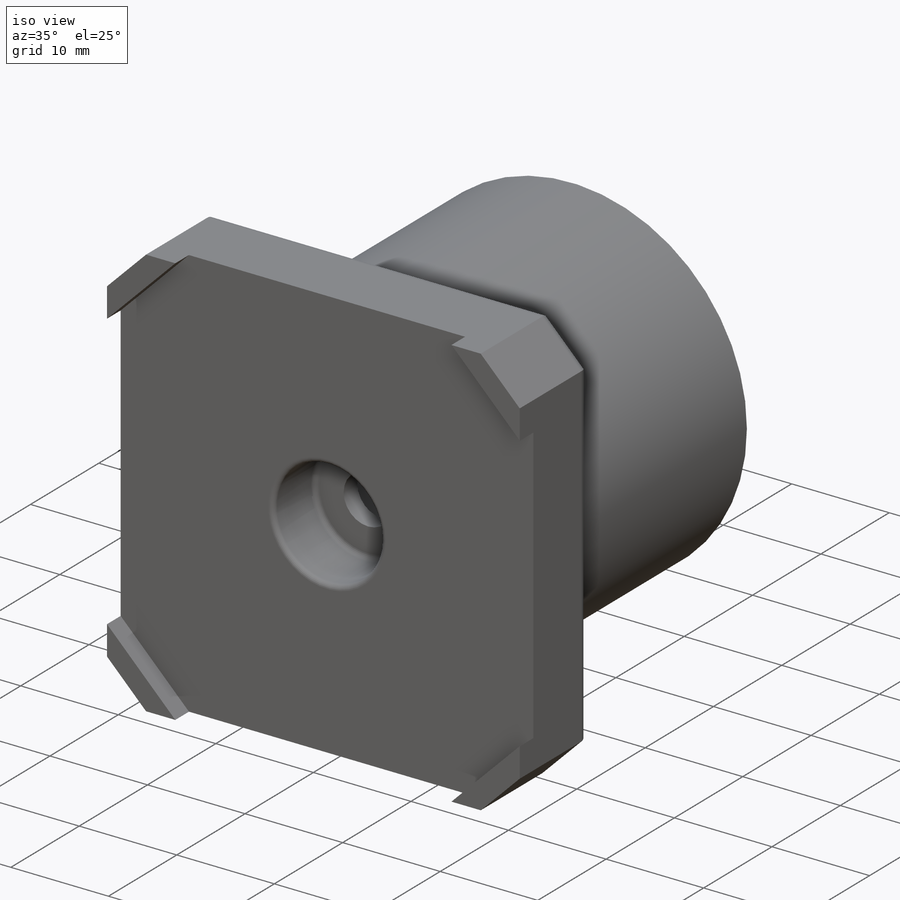
[diagram: iso view]
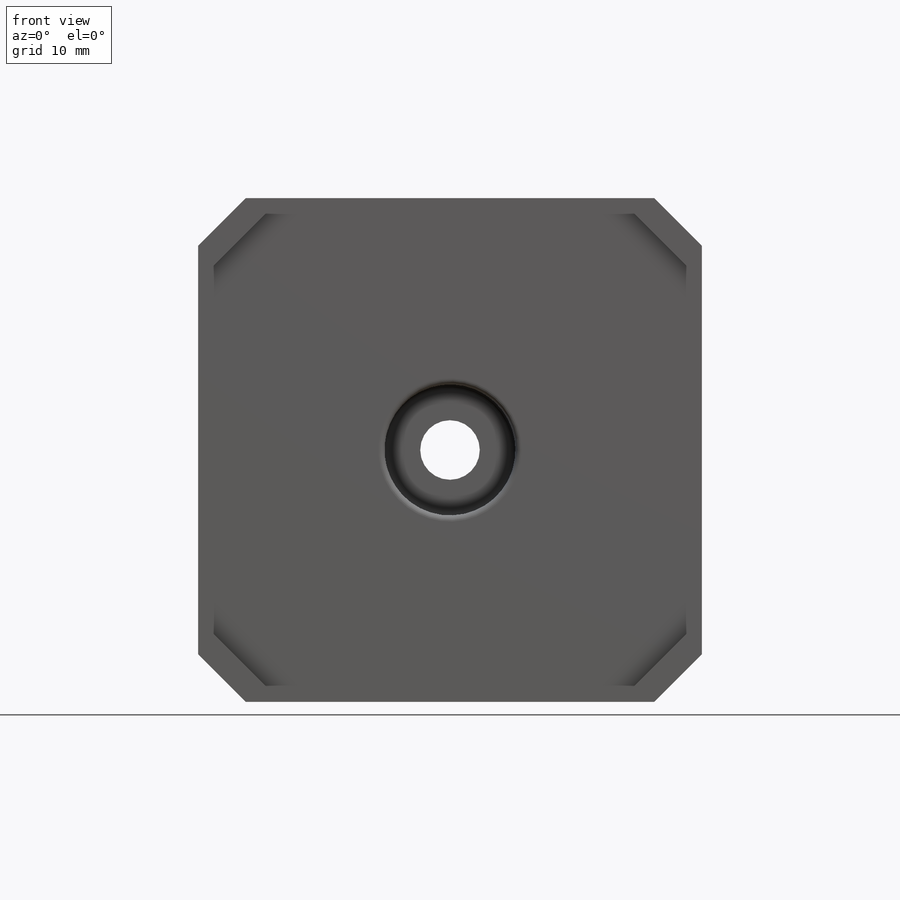
[diagram: front view]
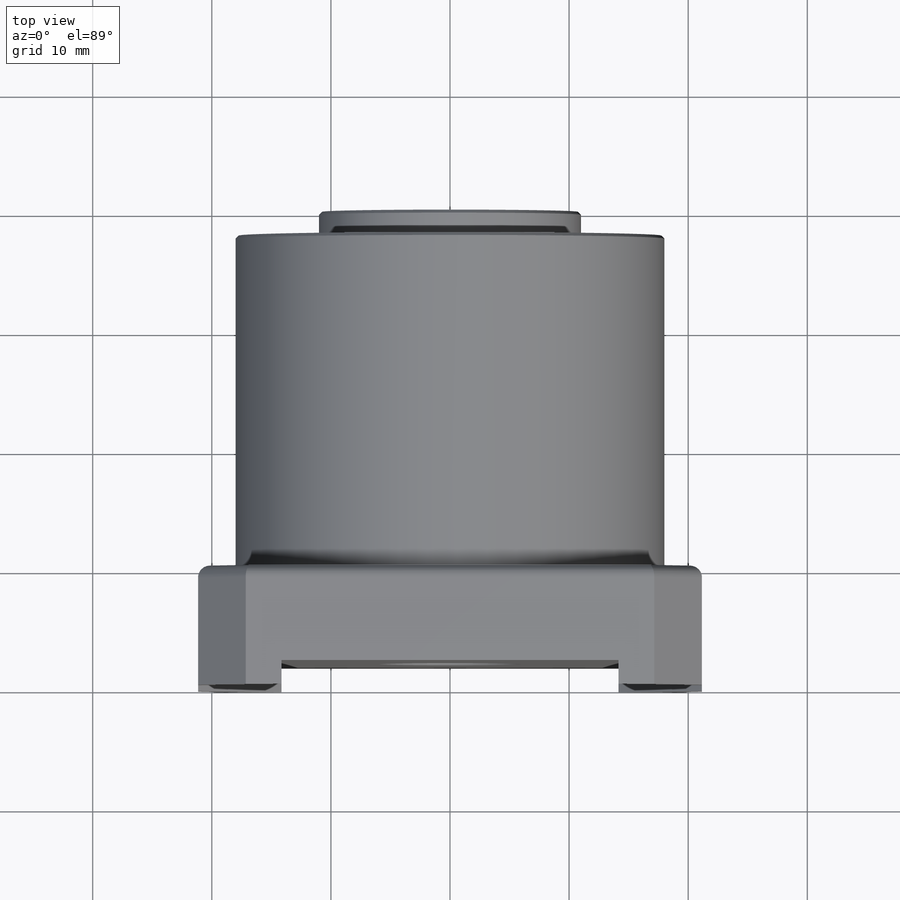
[diagram: top view]
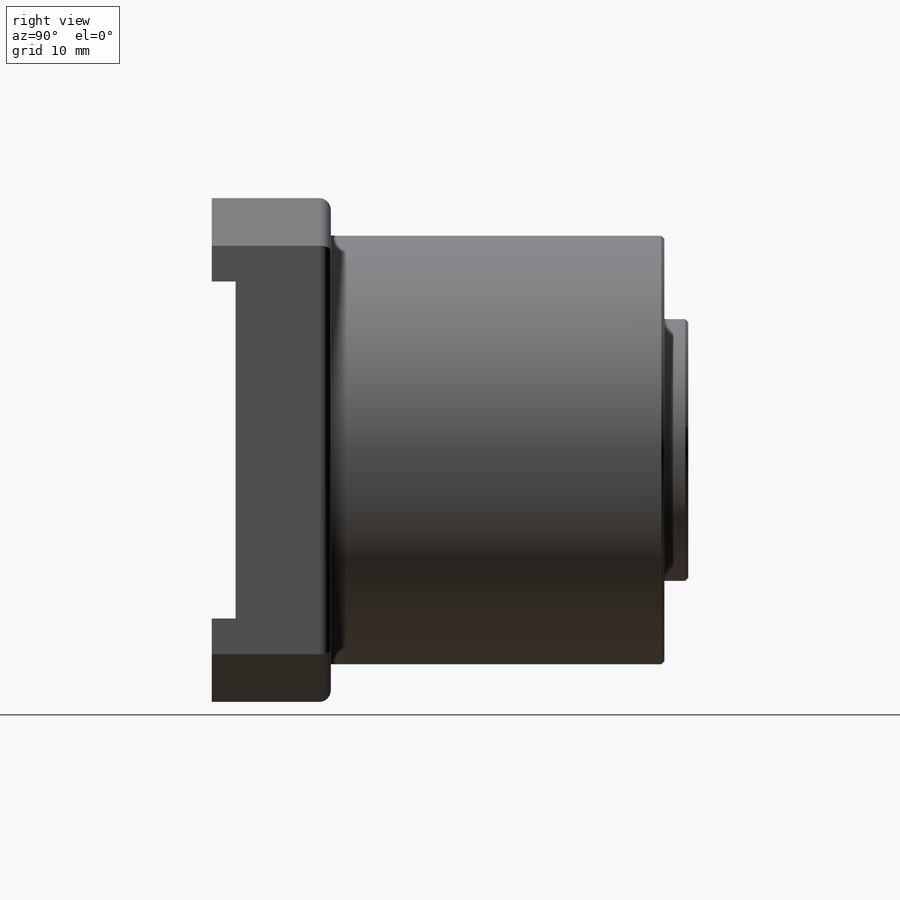
[diagram: right view]
SOLIDWORKS PART (.sldprt)
format: sldprt  version: not decoded by parser v0  size: 417,280 bytes
history: native  units: mm
features: sketch x9, cut_extrude x6, plane x3, extrude x3, fillet x3, material x1, chamfer x1 + 2 further entries (+8 scaffold rows collapsed)
feature tree (36):
  scaffold x8  (default folders/planes/origin — collapsed)
  material  "Acero aleado"
  "SurfaceBodyFolder1"
  "SolidBodyFolder1"
  plane  "Plane1"
  plane  "Plane2"
  plane  "Plane3"
  sketch  "Sketch1"  dims[D1=42.3mm D2=42.3mm]
  extrude  "Extrude1"  Depth=10mm
  sketch  "Sketch2"  dims[D1=42.3mm D2=42.3mm]
  cut_extrude  "ICE1"  Depth=2mm
  sketch  "Sketch4"  dims[D1=11.0mm]
  cut_extrude  "ICE3"  Depth=6mm
  sketch  "Sketch5"  dims[D1=5.0mm]
  cut_extrude  "ICE4"  [1 undecoded]
  fillet  "Fillet2"  Radius=0.5mm
  sketch  "Sketch6"  dims[D1=3.0mm D2=15.5mm D3=15.5mm D5=15.5mm D6=15.5mm D4=4.0]
  cut_extrude  "ICE5"  Depth=4.5mm
  fillet  "Fillet3"  Radius=0.5mm
  sketch  "Sketch7"  dims[D1=36.0mm]
  extrude  "Boss-Extrude1"  Depth=28mm
  sketch  "Sketch8"  dims[D1=22.0mm]
  extrude  "Boss-Extrude2"  Depth=2mm
  fillet  "Fillet1"  Radius=1mm
  sketch  "Sketch9"  dims[D1=8.1mm]
  cut_extrude  "Cut-Extrude1"  [1 undecoded]
  sketch  "Sketch10"  dims[c1.D2=3.0mm c1.D3=28.0mm c1.D1=~29.655761mm c2.D1=45.0deg]
  cut_extrude  "Cut-Extrude2"  Depth=5mm
  chamfer  "Chamfer1"  Distance=0.25mm Angle=45deg
decode coverage: 20 of 22 modeling features carry decoded parameters; 2 rows unclassified (native names shown)
note: ~ marks probable driven/reference dimensions
note: 2 parameter values undecoded
note: suppression state not decoded; provenance and decode notes live in map.json
